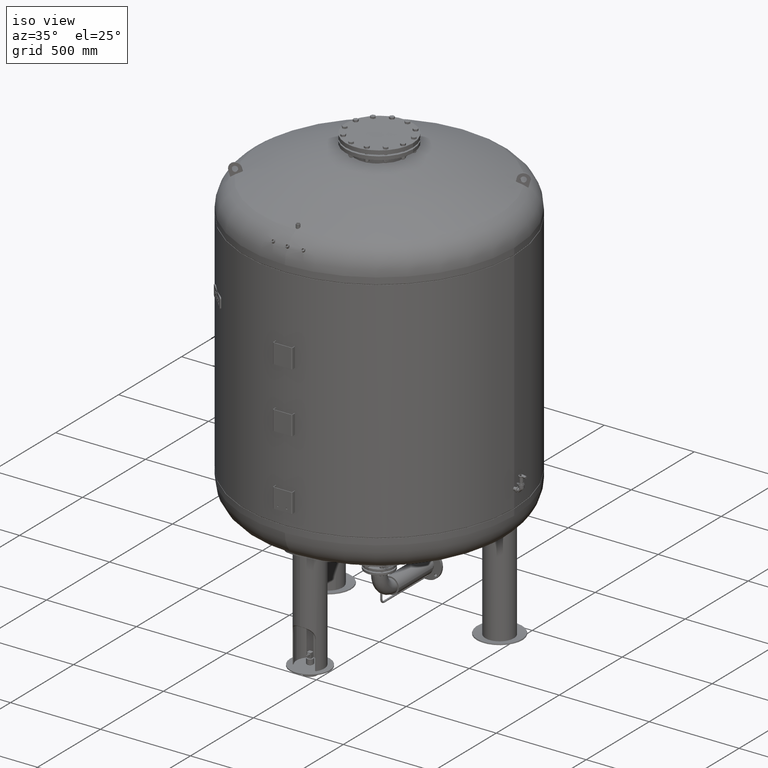
[diagram: clean part render]
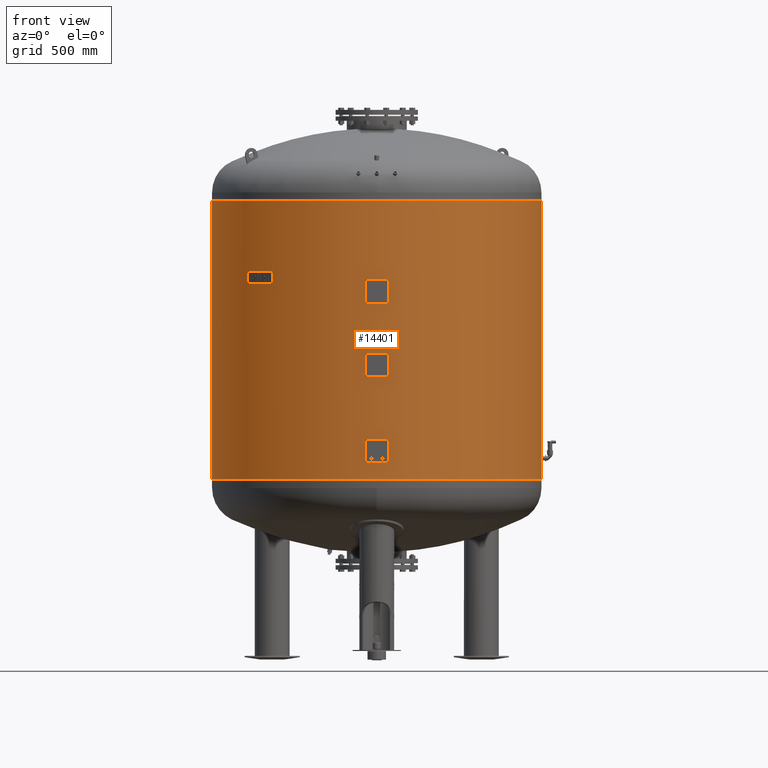
[diagram: tour spotlight — one face highlighted and labeled with its STEP entity id]
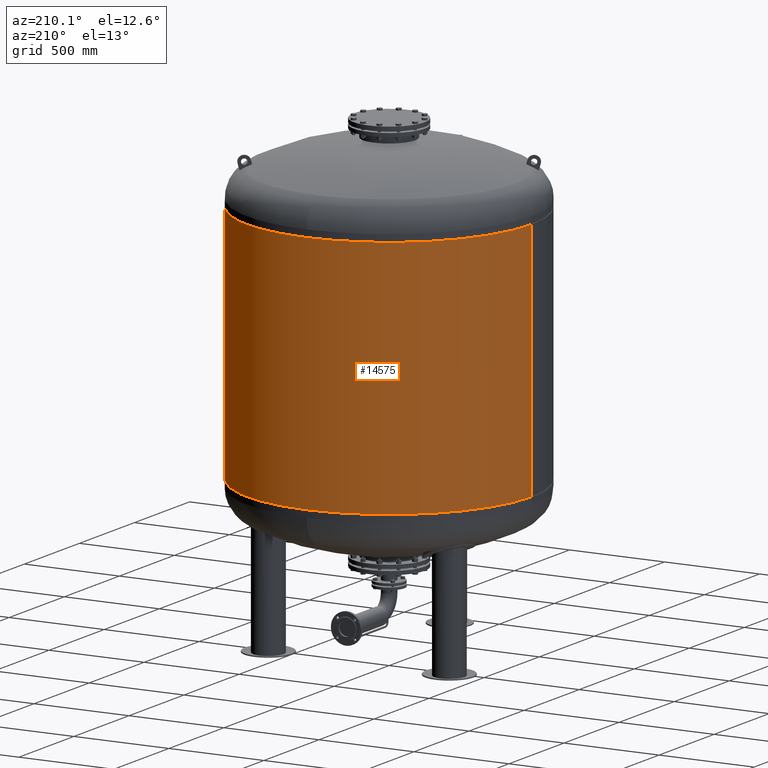
[diagram: tour spotlight — one face highlighted and labeled with its STEP entity id]
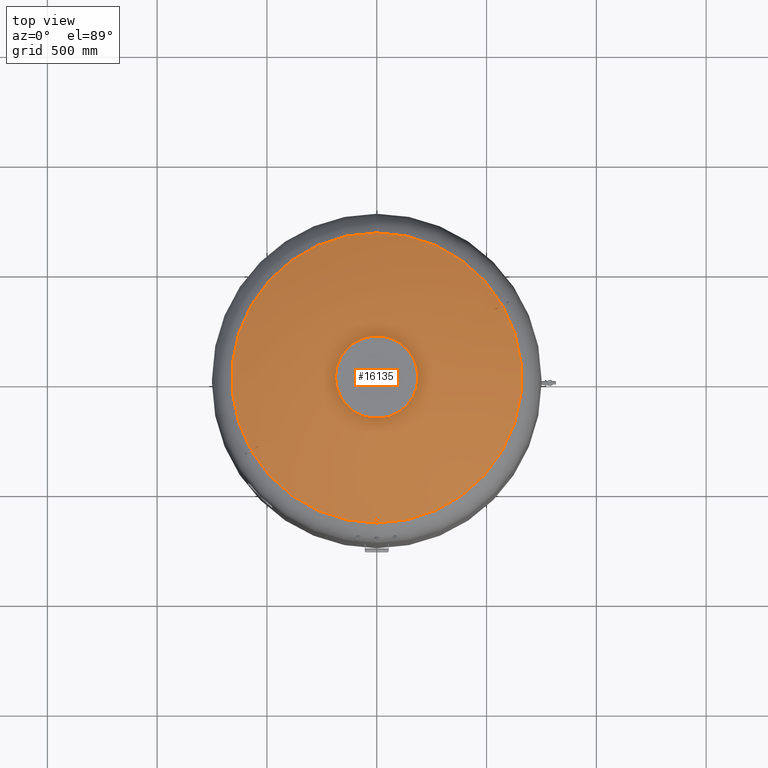
[diagram: tour spotlight — one face highlighted and labeled with its STEP entity id]
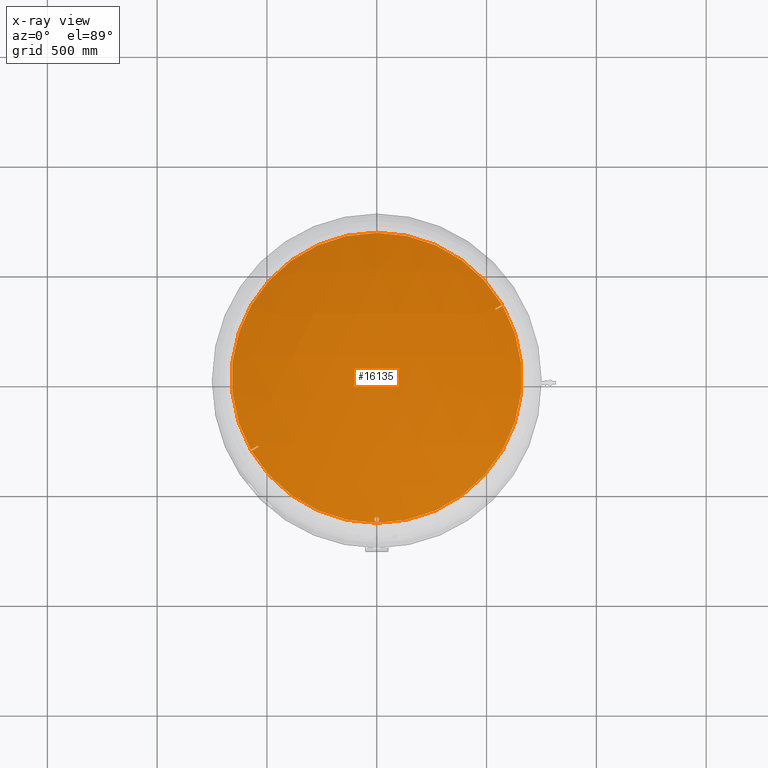
[diagram: x-ray of the same camera — body ghosted, this tour face saturated]
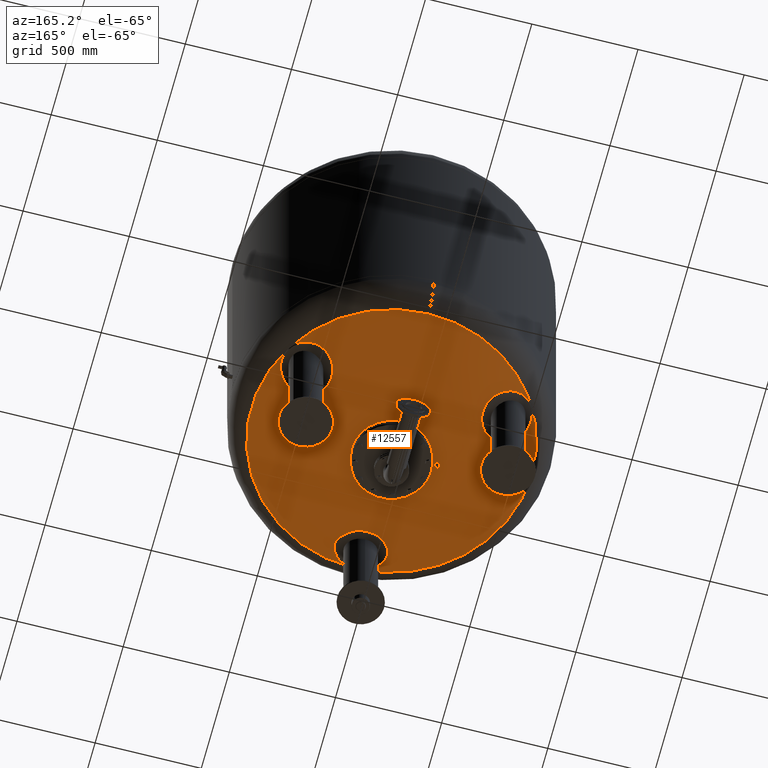
[diagram: tour spotlight — one face highlighted and labeled with its STEP entity id]
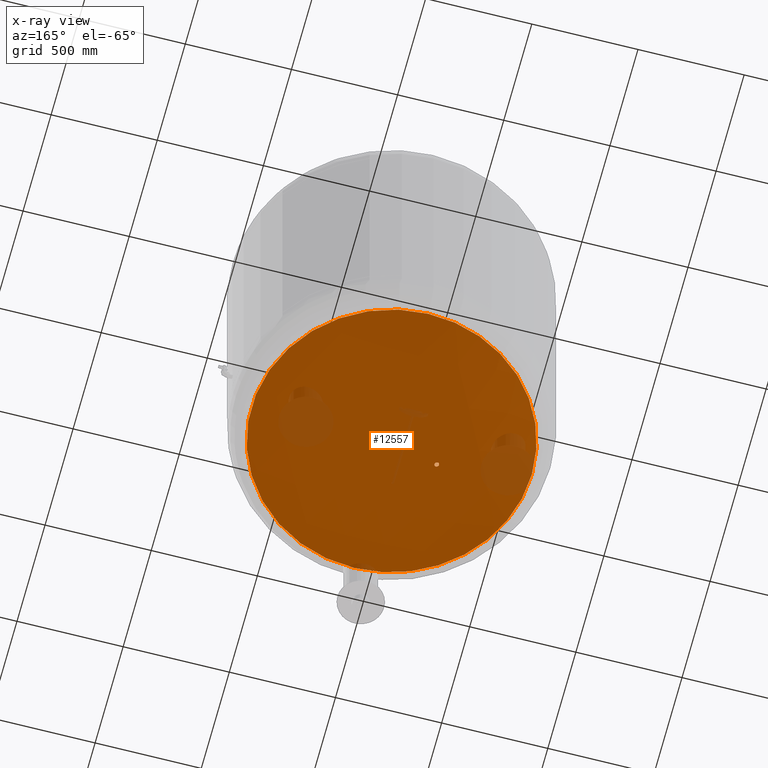
[diagram: x-ray of the same camera — body ghosted, this tour face saturated]
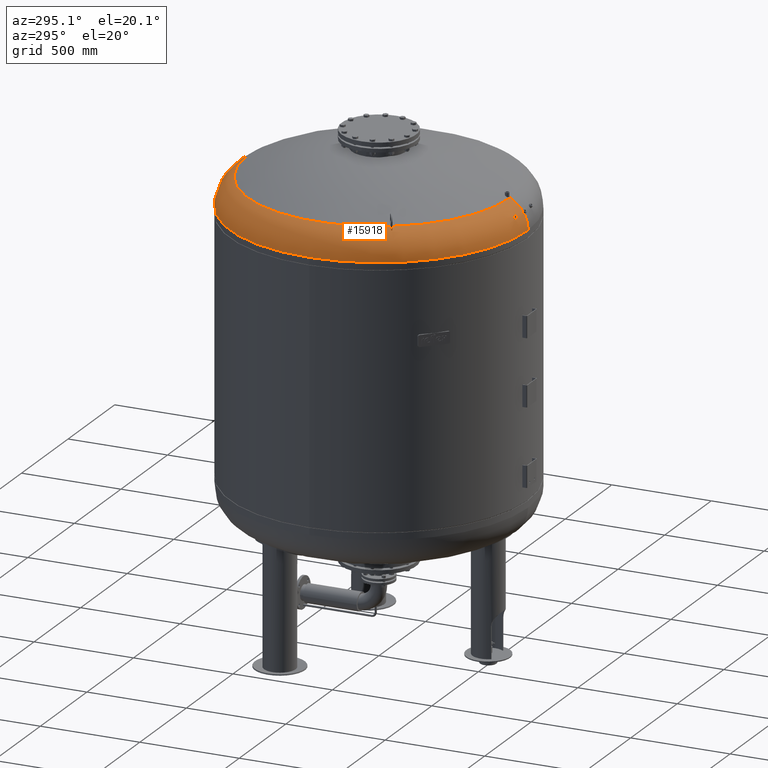
[diagram: tour spotlight — one face highlighted and labeled with its STEP entity id]
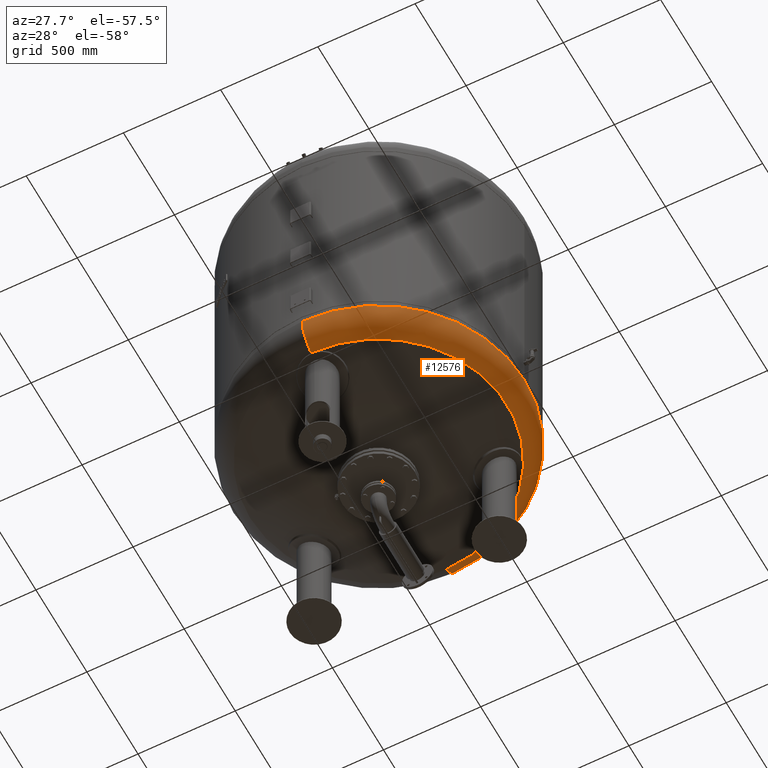
[diagram: tour spotlight — one face highlighted and labeled with its STEP entity id]
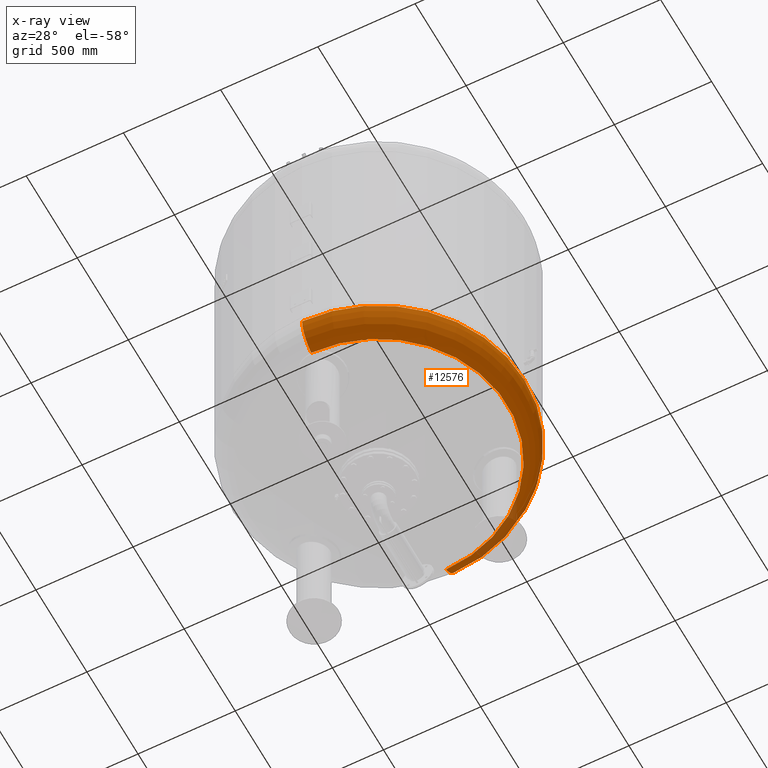
[diagram: x-ray of the same camera — body ghosted, this tour face saturated]
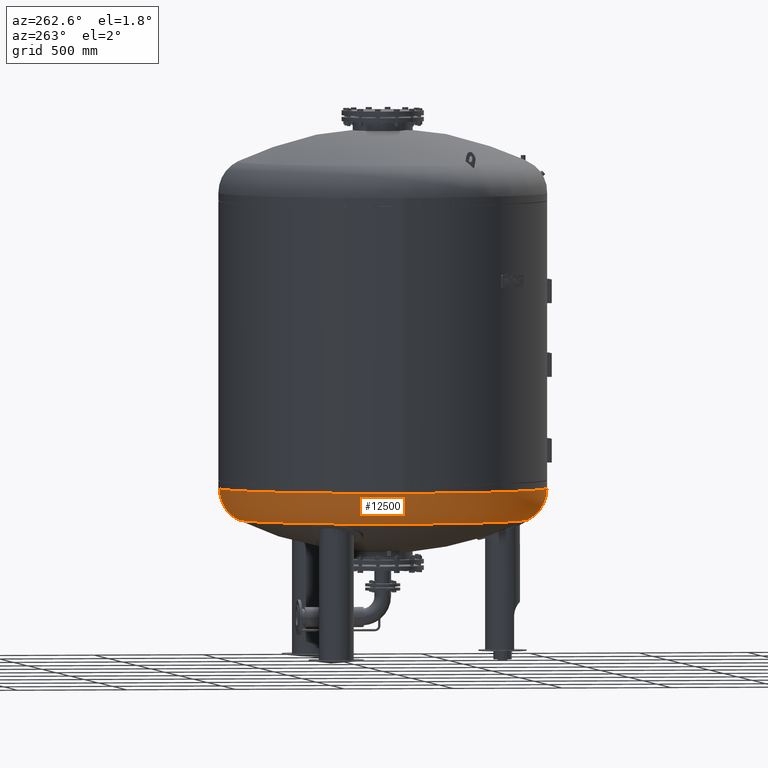
[diagram: tour spotlight — one face highlighted and labeled with its STEP entity id]
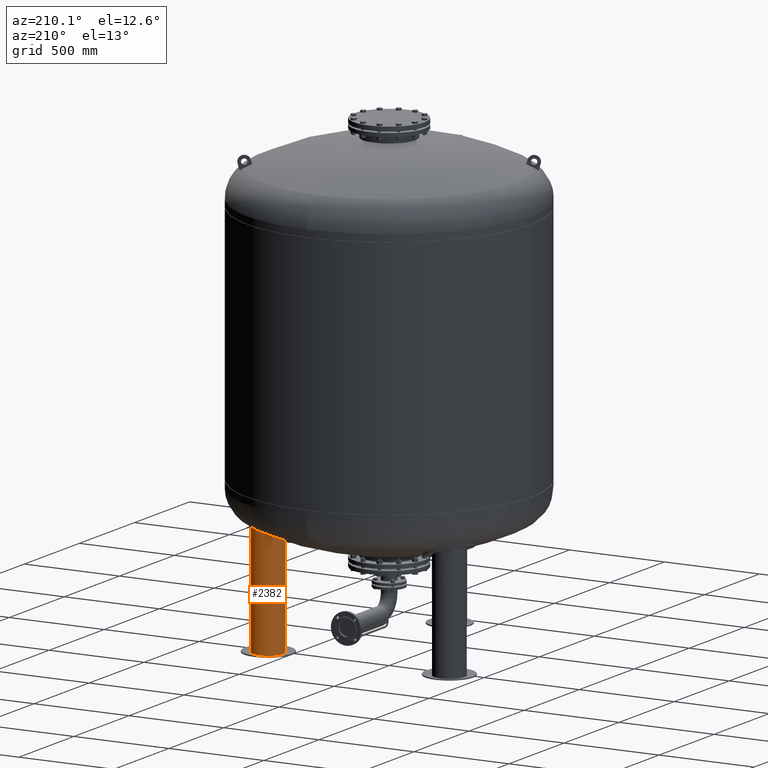
[diagram: tour spotlight — one face highlighted and labeled with its STEP entity id]
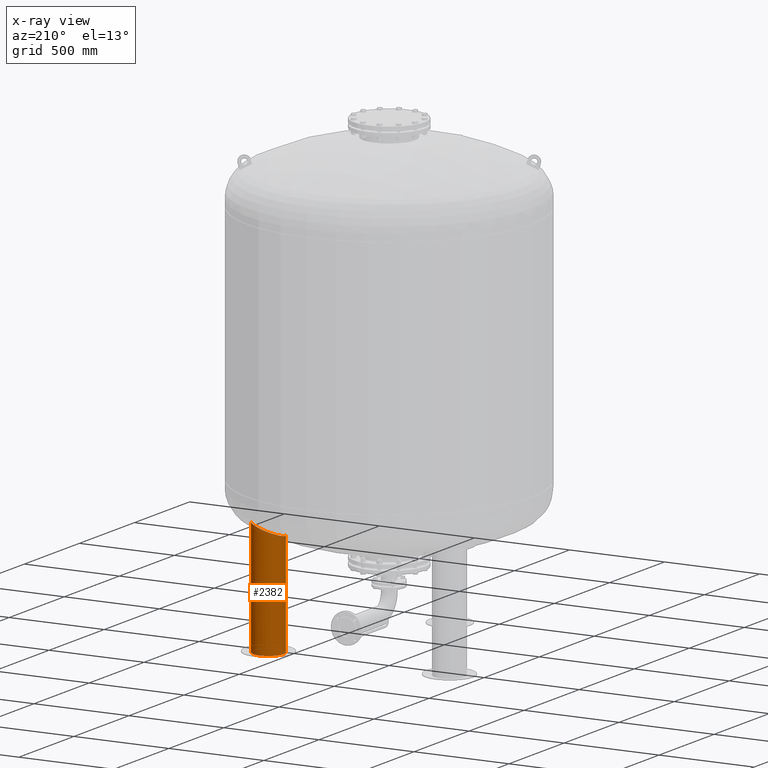
[diagram: x-ray of the same camera — body ghosted, this tour face saturated]
A machine part: a face-by-face anatomy tour. The part has 1142 B-rep faces; the first image is the clean iso view, then the 8 largest visible faces are spotlighted one at a time (largest first), each with its STEP entity span.

Face 1 — front view, entity #14401. In plain terms, the highlighted cylindrical surface (partial cylindrical patch) has radius 750 mm, axis along (0, 0, 1).
Definition (entity closure, byte-faithful):
#14360=CARTESIAN_POINT('',(9.041626E-015,0.0,1781.0));
#14361=DIRECTION('',(2.670074E-017,0.0,1.0));
#14362=DIRECTION('',(1.0,0.0,0.0));
#14363=AXIS2_PLACEMENT_3D('',#14360,#14361,#14362);
#14364=CYLINDRICAL_SURFACE('',#14363,750.000000000000450);
#14365=CARTESIAN_POINT('',(750.000000000000570,0.0,2092.0));
#14366=VERTEX_POINT('',#14365);
#14367=CARTESIAN_POINT('',(749.999999999999890,0.0,821.999999999999770));
#14368=VERTEX_POINT('',#14367);
#14369=CARTESIAN_POINT('',(750.000000000000570,0.0,2092.0));
#14370=DIRECTION('',(0.0,0.0,-1.0));
#14371=VECTOR('',#14370,1270.000000000000200);
#14372=LINE('',#14369,#14371);
#14373=EDGE_CURVE('',#14366,#14368,#14372,.T.);
#14374=ORIENTED_EDGE('',*,*,#14373,.F.);
#14375=CARTESIAN_POINT('',(-750.000000000000450,-9.184548E-014,2092.0));
#14376=VERTEX_POINT('',#14375);
#14377=CARTESIAN_POINT('',(1.598721E-014,0.0,2092.0));
#14378=DIRECTION('',(0.0,0.0,1.0));
#14379=DIRECTION('',(1.0,0.0,0.0));
#14380=AXIS2_PLACEMENT_3D('',#14377,#14378,#14379);
#14381=CIRCLE('',#14380,750.000000000000570);
#14382=EDGE_CURVE('',#14376,#14366,#14381,.T.);
#14383=ORIENTED_EDGE('',*,*,#14382,.F.);
#14384=CARTESIAN_POINT('',(-749.999999999999890,-9.184548E-014,821.999999999999770));
#14385=VERTEX_POINT('',#14384);
#14386=CARTESIAN_POINT('',(-750.000000000000450,-9.184548E-014,2092.0));
#14387=DIRECTION('',(0.0,0.0,-1.0));
#14388=VECTOR('',#14387,1270.000000000000200);
#14389=LINE('',#14386,#14388);
#14390=EDGE_CURVE('',#14376,#14385,#14389,.T.);
#14391=ORIENTED_EDGE('',*,*,#14390,.T.);
#14392=CARTESIAN_POINT('',(-1.660786E-014,0.0,821.999999999999770));
#14393=DIRECTION('',(0.0,0.0,1.0));
#14394=DIRECTION('',(1.0,0.0,0.0));
#14395=AXIS2_PLACEMENT_3D('',#14392,#14393,#14394);
#14396=CIRCLE('',#14395,749.999999999999890);
#14397=EDGE_CURVE('',#14385,#14368,#14396,.T.);
#14398=ORIENTED_EDGE('',*,*,#14397,.T.);
#14399=EDGE_LOOP('',(#14374,#14383,#14391,#14398));
#14400=FACE_OUTER_BOUND('',#14399,.T.);
#14401=ADVANCED_FACE('',(#14400),#14364,.T.);

Face 2 — auxiliary view, entity #14575. In plain terms, the highlighted cylindrical surface (partial cylindrical patch) has radius 750 mm, axis along (0, 0, 1).
Definition (entity closure, byte-faithful):
#14365=CARTESIAN_POINT('',(750.000000000000570,0.0,2092.0));
#14366=VERTEX_POINT('',#14365);
#14367=CARTESIAN_POINT('',(749.999999999999890,0.0,821.999999999999770));
#14368=VERTEX_POINT('',#14367);
#14369=CARTESIAN_POINT('',(750.000000000000570,0.0,2092.0));
#14370=DIRECTION('',(0.0,0.0,-1.0));
#14371=VECTOR('',#14370,1270.000000000000200);
#14372=LINE('',#14369,#14371);
#14373=EDGE_CURVE('',#14366,#14368,#14372,.T.);
#14375=CARTESIAN_POINT('',(-750.000000000000450,-9.184548E-014,2092.0));
#14376=VERTEX_POINT('',#14375);
#14384=CARTESIAN_POINT('',(-749.999999999999890,-9.184548E-014,821.999999999999770));
#14385=VERTEX_POINT('',#14384);
#14386=CARTESIAN_POINT('',(-750.000000000000450,-9.184548E-014,2092.0));
#14387=DIRECTION('',(0.0,0.0,-1.0));
#14388=VECTOR('',#14387,1270.000000000000200);
#14389=LINE('',#14386,#14388);
#14390=EDGE_CURVE('',#14376,#14385,#14389,.T.);
#14500=CARTESIAN_POINT('',(-1.660786E-014,0.0,821.999999999999770));
#14501=DIRECTION('',(0.0,0.0,1.0));
#14502=DIRECTION('',(1.0,0.0,0.0));
#14503=AXIS2_PLACEMENT_3D('',#14500,#14501,#14502);
#14504=CIRCLE('',#14503,749.999999999999890);
#14505=EDGE_CURVE('',#14368,#14385,#14504,.T.);
#14515=CARTESIAN_POINT('',(1.598721E-014,0.0,2092.0));
#14516=DIRECTION('',(0.0,0.0,1.0));
#14517=DIRECTION('',(1.0,0.0,0.0));
#14518=AXIS2_PLACEMENT_3D('',#14515,#14516,#14517);
#14519=CIRCLE('',#14518,750.000000000000570);
#14520=EDGE_CURVE('',#14366,#14376,#14519,.T.);
#14564=CARTESIAN_POINT('',(9.041626E-015,0.0,1781.0));
#14565=DIRECTION('',(2.670074E-017,0.0,1.0));
#14566=DIRECTION('',(1.0,0.0,0.0));
#14567=AXIS2_PLACEMENT_3D('',#14564,#14565,#14566);
#14568=CYLINDRICAL_SURFACE('',#14567,750.000000000000450);
#14569=ORIENTED_EDGE('',*,*,#14373,.T.);
#14570=ORIENTED_EDGE('',*,*,#14505,.T.);
#14571=ORIENTED_EDGE('',*,*,#14390,.F.);
#14572=ORIENTED_EDGE('',*,*,#14520,.F.);
#14573=EDGE_LOOP('',(#14569,#14570,#14571,#14572));
#14574=FACE_OUTER_BOUND('',#14573,.T.);
#14575=ADVANCED_FACE('',(#14574),#14568,.T.);

Face 3 — top view, entity #16135. An x-ray twin of the same camera follows (body ghosted, this face saturated) — the face is partly hidden behind the body. In plain terms, the highlighted spherical surface has radius 1509 mm.
Definition (entity closure, byte-faithful):
#15353=CARTESIAN_POINT('',(-3.908790E-014,-655.650000000000200,2275.118860696149600));
#15354=VERTEX_POINT('',#15353);
#15370=CARTESIAN_POINT('',(-3.643333E-014,-634.350000000000250,2285.189934778955400));
#15371=VERTEX_POINT('',#15370);
#15378=CARTESIAN_POINT('',(-3.643333E-014,-634.350000000000250,2285.189934778955400));
#15379=CARTESIAN_POINT('',(-0.665356121600575,-634.350000000000250,2285.189934778955400));
#15380=CARTESIAN_POINT('',(-1.350949437001933,-634.413404190588380,2285.160067323583900));
#15381=CARTESIAN_POINT('',(-2.709163715388102,-634.677136677483300,2285.035819489551600));
#15382=CARTESIAN_POINT('',(-3.381800145527381,-634.877399673759780,2284.941469592940800));
#15383=CARTESIAN_POINT('',(-4.666205770247565,-635.401555709393960,2284.694482302683800));
#15384=CARTESIAN_POINT('',(-5.279175018932286,-635.725897994843310,2284.541632396409100));
#15385=CARTESIAN_POINT('',(-6.408446699131011,-636.467094997367890,2284.192258225785700));
#15386=CARTESIAN_POINT('',(-6.924750618118385,-636.883947430330180,2283.995733923613400));
#15387=CARTESIAN_POINT('',(-7.890225855511284,-637.812066143510150,2283.558066601965000));
#15388=CARTESIAN_POINT('',(-8.361484811050577,-638.364076526992330,2283.297699280517000));
#15389=CARTESIAN_POINT('',(-9.184909130526258,-639.560574217313960,2282.733154802825500));
#15390=CARTESIAN_POINT('',(-9.537165322407889,-640.205009979753980,2282.429000886638700));
#15391=CARTESIAN_POINT('',(-10.099596713855821,-641.543470358319950,2281.797056877939700));
#15392=CARTESIAN_POINT('',(-10.310158197774166,-642.238371078161440,2281.468852435417800));
#15393=CARTESIAN_POINT('',(-10.585389715432889,-643.630518005042970,2280.811092215924000));
#15394=CARTESIAN_POINT('',(-10.650000000000041,-644.327773783445990,2280.481531696811500));
#15395=CARTESIAN_POINT('',(-10.650000000000041,-645.672582847176270,2279.845682896962900));
#15396=CARTESIAN_POINT('',(-10.585321999158978,-646.370108996278650,2279.515766474685300));
#15397=CARTESIAN_POINT('',(-10.309904511360994,-647.762627273321750,2278.856887882093800));
#15398=CARTESIAN_POINT('',(-10.099226215268921,-648.457629366783070,2278.527921196685800));
#15399=CARTESIAN_POINT('',(-9.536575262430000,-649.796175836176870,2277.894126243168100));
#15400=CARTESIAN_POINT('',(-9.184218306884119,-650.440594312455000,2277.588884786357100));
#15401=CARTESIAN_POINT('',(-8.360621428439867,-651.637013011092450,2277.022009760502000));
#15402=CARTESIAN_POINT('',(-7.889290439644364,-652.188962456306400,2276.760401335867800));
#15403=CARTESIAN_POINT('',(-6.923874650766163,-653.116778685511690,2276.320541682071500));
#15404=CARTESIAN_POINT('',(-6.407722563082293,-653.533432843510810,2276.122965029964700));
#15405=CARTESIAN_POINT('',(-5.278739801402308,-654.274335051526010,2275.771567636845200));
#15406=CARTESIAN_POINT('',(-4.665906970622991,-654.598580857008300,2275.617749092760700));
#15407=CARTESIAN_POINT('',(-3.381714256279930,-655.122620744017920,2275.369122863290600));
#15408=CARTESIAN_POINT('',(-2.709152380359616,-655.322864024945490,2275.274102903182200));
#15409=CARTESIAN_POINT('',(-1.351005238531963,-655.586586472611200,2275.148956099280000));
#15410=CARTESIAN_POINT('',(-0.665404330812124,-655.650000000000200,2275.118860696149600));
#15411=CARTESIAN_POINT('',(-3.908790E-014,-655.650000000000200,2275.118860696149600));
#15412=B_SPLINE_CURVE_WITH_KNOTS('',3,(#15378,#15379,#15380,#15381,#15382,#15383,#15384,#15385,#15386,#15387,#15388,#15389,#15390,#15391,#15392,#15393,#15394,#15395,#15396,#15397,#15398,#15399,#15400,#15401,#15402,#15403,#15404,#15405,#15406,#15407,#15408,#15409,#15410,#15411),.UNSPECIFIED.,.F.,.U.,(4,2,2,2,2,2,2,2,2,2,2,2,2,2,2,2,4),(33.819766214062426,35.815834578864042,37.811902943665665,39.807971308467287,41.804039673268903,44.034778043807279,46.265516414345662,48.496254784884044,50.726993155422420,52.958914981161783,55.190836806901146,57.422758632640509,59.654680458379865,61.650893450816113,63.647106443252355,65.643319435688596,67.639532428124852),.UNSPECIFIED.);
#15413=EDGE_CURVE('',#15371,#15354,#15412,.T.);
#15634=CARTESIAN_POINT('',(1.087271E-013,660.606666666666800,2272.716562866229200));
#15635=VERTEX_POINT('',#15634);
#15643=CARTESIAN_POINT('',(570.596255916202270,332.898003566943030,2272.716562866229200));
#15644=VERTEX_POINT('',#15643);
#15645=CARTESIAN_POINT('',(7.530601E-015,-2.797401E-014,2272.716562866229200));
#15646=DIRECTION('',(0.0,0.0,-1.0));
#15647=DIRECTION('',(1.0,0.0,0.0));
#15648=AXIS2_PLACEMENT_3D('',#15645,#15646,#15647);
#15649=CIRCLE('',#15648,660.606666666666800);
#15650=EDGE_CURVE('',#15635,#15644,#15649,.T.);
#15679=CARTESIAN_POINT('',(573.596255916202270,327.701851144236400,2272.716562866229200));
#15680=VERTEX_POINT('',#15679);
#15694=CARTESIAN_POINT('',(2.782883E-014,-660.606666666666800,2272.716562866229200));
#15695=VERTEX_POINT('',#15694);
#15696=CARTESIAN_POINT('',(7.530601E-015,-2.797401E-014,2272.716562866229200));
#15697=DIRECTION('',(0.0,0.0,-1.0));
#15698=DIRECTION('',(1.0,0.0,0.0));
#15699=AXIS2_PLACEMENT_3D('',#15696,#15697,#15698);
#15700=CIRCLE('',#15699,660.606666666666800);
#15701=EDGE_CURVE('',#15680,#15695,#15700,.T.);
#15816=CARTESIAN_POINT('',(-570.596255916196580,-332.898003566952920,2272.716562866229700));
#15817=VERTEX_POINT('',#15816);
#15818=CARTESIAN_POINT('',(7.530601E-015,-2.797401E-014,2272.716562866229200));
#15819=DIRECTION('',(0.0,0.0,-1.0));
#15820=DIRECTION('',(1.0,0.0,0.0));
#15821=AXIS2_PLACEMENT_3D('',#15818,#15819,#15820);
#15822=CIRCLE('',#15821,660.606666666666800);
#15823=EDGE_CURVE('',#15695,#15817,#15822,.T.);
#15852=CARTESIAN_POINT('',(-573.596255916196580,-327.701851144246290,2272.716562866229700));
#15853=VERTEX_POINT('',#15852);
#15867=CARTESIAN_POINT('',(7.530601E-015,-2.797401E-014,2272.716562866229200));
#15868=DIRECTION('',(0.0,0.0,-1.0));
#15869=DIRECTION('',(1.0,0.0,0.0));
#15870=AXIS2_PLACEMENT_3D('',#15867,#15868,#15869);
#15871=CIRCLE('',#15870,660.606666666666800);
#15872=EDGE_CURVE('',#15853,#15635,#15871,.T.);
#16034=CARTESIAN_POINT('',(1.607048E-013,-2.771988E-013,916.0));
#16035=DIRECTION('',(0.0,-1.0,0.0));
#16036=DIRECTION('',(-1.0,0.0,0.0));
#16037=AXIS2_PLACEMENT_3D('',#16034,#16035,#16036);
#16038=SPHERICAL_SURFACE('',#16037,1509.0);
#16039=CARTESIAN_POINT('',(-539.004547741172360,-314.658522347942950,2289.879584180558100));
#16040=VERTEX_POINT('',#16039);
#16041=CARTESIAN_POINT('',(1.500000000005994,-2.598076211363742,916.0));
#16042=DIRECTION('',(0.499999999999994,-0.866025403784442,0.0));
#16043=DIRECTION('',(0.0,0.0,1.0));
#16044=AXIS2_PLACEMENT_3D('',#16041,#16042,#16043);
#16045=CIRCLE('',#16044,1508.997017889697400);
#16046=EDGE_CURVE('',#16040,#15817,#16045,.T.);
#16047=ORIENTED_EDGE('',*,*,#16046,.T.);
#16048=ORIENTED_EDGE('',*,*,#15823,.F.);
#16049=ORIENTED_EDGE('',*,*,#15701,.F.);
#16050=CARTESIAN_POINT('',(542.004547741178380,309.462369925225970,2289.879584180558100));
#16051=VERTEX_POINT('',#16050);
#16052=CARTESIAN_POINT('',(1.500000000006090,-2.598076211363818,916.0));
#16053=DIRECTION('',(0.500000000000006,-0.866025403784435,0.0));
#16054=DIRECTION('',(0.0,0.0,1.0));
#16055=AXIS2_PLACEMENT_3D('',#16052,#16053,#16054);
#16056=CIRCLE('',#16055,1508.997017889697400);
#16057=EDGE_CURVE('',#15680,#16051,#16056,.T.);
#16058=ORIENTED_EDGE('',*,*,#16057,.T.);
#16059=CARTESIAN_POINT('',(539.004547741178380,314.658522347932720,2289.879584180558100));
#16060=VERTEX_POINT('',#16059);
#16061=CARTESIAN_POINT('',(195.850324208315390,113.074237402547780,853.348481320245360));
#16062=DIRECTION('',(-0.834590199910595,-0.481850876581413,0.266981143436977));
#16063=DIRECTION('',(0.0,0.484652475916126,0.874706795211040));
#16064=AXIS2_PLACEMENT_3D('',#16061,#16062,#16063);
#16065=CIRCLE('',#16064,1490.641692208577100);
#16066=EDGE_CURVE('',#16051,#16060,#16065,.T.);
#16067=ORIENTED_EDGE('',*,*,#16066,.T.);
#16068=CARTESIAN_POINT('',(-1.499999999993948,2.598076211342792,916.0));
#16069=DIRECTION('',(-0.500000000000006,0.866025403784435,0.0));
#16070=DIRECTION('',(0.0,0.0,-1.0));
#16071=AXIS2_PLACEMENT_3D('',#16068,#16069,#16070);
#16072=CIRCLE('',#16071,1508.997017889697400);
#16073=EDGE_CURVE('',#16060,#15644,#16072,.T.);
#16074=ORIENTED_EDGE('',*,*,#16073,.T.);
#16075=ORIENTED_EDGE('',*,*,#15650,.F.);
#16076=ORIENTED_EDGE('',*,*,#15872,.F.);
#16077=CARTESIAN_POINT('',(-542.004547741172470,-309.462369925236320,2289.879584180558100));
#16078=VERTEX_POINT('',#16077);
#16079=CARTESIAN_POINT('',(-1.499999999993967,2.598076211342912,916.0));
#16080=DIRECTION('',(-0.499999999999994,0.866025403784442,0.0));
#16081=DIRECTION('',(0.0,0.0,-1.0));
#16082=AXIS2_PLACEMENT_3D('',#16079,#16080,#16081);
#16083=CIRCLE('',#16082,1508.997017889697400);
#16084=EDGE_CURVE('',#15853,#16078,#16083,.T.);
#16085=ORIENTED_EDGE('',*,*,#16084,.T.);
#16086=CARTESIAN_POINT('',(-195.850324208316520,-113.074237402545550,853.348481320245580));
#16087=DIRECTION('',(0.834590199910602,0.481850876581402,0.266981143436977));
#16088=DIRECTION('',(0.0,0.484652475916135,-0.874706795211036));
#16089=AXIS2_PLACEMENT_3D('',#16086,#16087,#16088);
#16090=CIRCLE('',#16089,1490.641692208577100);
#16091=EDGE_CURVE('',#16078,#16040,#16090,.T.);
#16092=ORIENTED_EDGE('',*,*,#16091,.T.);
#16093=EDGE_LOOP('',(#16047,#16048,#16049,#16058,#16067,#16074,#16075,#16076,#16085,#16092));
#16094=FACE_OUTER_BOUND('',#16093,.T.);
#16095=CARTESIAN_POINT('',(-3.908790E-014,-655.650000000000200,2275.118860696149600));
#16096=CARTESIAN_POINT('',(0.665404330812043,-655.650000000000200,2275.118860696149600));
#16097=CARTESIAN_POINT('',(1.351005238531879,-655.586586472611200,2275.148956099280000));
#16098=CARTESIAN_POINT('',(2.709152380359531,-655.322864024945490,2275.274102903182200));
#16099=CARTESIAN_POINT('',(3.381714256279847,-655.122620744017920,2275.369122863290600));
#16100=CARTESIAN_POINT('',(4.665906970622912,-654.598580857008300,2275.617749092760700));
#16101=CARTESIAN_POINT('',(5.278739801402231,-654.274335051526010,2275.771567636845200));
#16102=CARTESIAN_POINT('',(6.407722563082215,-653.533432843510810,2276.122965029964700));
#16103=CARTESIAN_POINT('',(6.923874650766086,-653.116778685511690,2276.320541682071500));
#16104=CARTESIAN_POINT('',(7.889290439644289,-652.188962456306400,2276.760401335867800));
#16105=CARTESIAN_POINT('',(8.360621428439895,-651.637013011092340,2277.022009760502000));
#16106=CARTESIAN_POINT('',(9.184218306884104,-650.440594312454890,2277.588884786357100));
#16107=CARTESIAN_POINT('',(9.536575262430048,-649.796175836176760,2277.894126243168100));
#16108=CARTESIAN_POINT('',(10.099226215268947,-648.457629366782840,2278.527921196685800));
#16109=CARTESIAN_POINT('',(10.309904511360925,-647.762627273321640,2278.856887882094300));
#16110=CARTESIAN_POINT('',(10.585321999158889,-646.370108996278760,2279.515766474685700));
#16111=CARTESIAN_POINT('',(10.649999999999967,-645.672582847176270,2279.845682896962900));
#16112=CARTESIAN_POINT('',(10.649999999999967,-644.327773783445990,2280.481531696811500));
#16113=CARTESIAN_POINT('',(10.585389715432814,-643.630518005042970,2280.811092215924000));
#16114=CARTESIAN_POINT('',(10.310158197774092,-642.238371078161440,2281.468852435417800));
#16115=CARTESIAN_POINT('',(10.099596713855746,-641.543470358319950,2281.797056877939700));
#16116=CARTESIAN_POINT('',(9.537165322407816,-640.205009979753980,2282.429000886638700));
#16117=CARTESIAN_POINT('',(9.184909130526183,-639.560574217313960,2282.733154802825500));
#16118=CARTESIAN_POINT('',(8.361484811050502,-638.364076526992330,2283.297699280517000));
#16119=CARTESIAN_POINT('',(7.890225855511214,-637.812066143510150,2283.558066601965000));
#16120=CARTESIAN_POINT('',(6.924750618118313,-636.883947430330180,2283.995733923613400));
#16121=CARTESIAN_POINT('',(6.408446699130936,-636.467094997367890,2284.192258225785700));
#16122=CARTESIAN_POINT('',(5.279175018932212,-635.725897994843310,2284.541632396409100));
#16123=CARTESIAN_POINT('',(4.666205770247492,-635.401555709393960,2284.694482302683800));
#16124=CARTESIAN_POINT('',(3.381800145527312,-634.877399673759780,2284.941469592940800));
#16125=CARTESIAN_POINT('',(2.709163715388034,-634.677136677483300,2285.035819489551600));
#16126=CARTESIAN_POINT('',(1.350949437001865,-634.413404190588380,2285.160067323583900));
#16127=CARTESIAN_POINT('',(0.665356121600503,-634.350000000000250,2285.189934778955400));
#16128=CARTESIAN_POINT('',(-3.643333E-014,-634.350000000000250,2285.189934778955400));
#16129=B_SPLINE_CURVE_WITH_KNOTS('',3,(#16095,#16096,#16097,#16098,#16099,#16100,#16101,#16102,#16103,#16104,#16105,#16106,#16107,#16108,#16109,#16110,#16111,#16112,#16113,#16114,#16115,#16116,#16117,#16118,#16119,#16120,#16121,#16122,#16123,#16124,#16125,#16126,#16127,#16128),.UNSPECIFIED.,.F.,.U.,(4,2,2,2,2,2,2,2,2,2,2,2,2,2,2,2,4),(0.0,1.996212992436247,3.992425984872494,5.988638977308741,7.984851969744987,10.216773795484348,12.448695621223710,14.680617446963071,16.912539272702432,19.143277643240811,21.374016013779190,23.604754384317570,25.835492754855949,27.831561119657568,29.827629484459187,31.823697849260807,33.819766214062426),.UNSPECIFIED.);
#16130=EDGE_CURVE('',#15354,#15371,#16129,.T.);
#16131=ORIENTED_EDGE('',*,*,#16130,.F.);
#16132=ORIENTED_EDGE('',*,*,#15413,.F.);
#16133=EDGE_LOOP('',(#16131,#16132));
#16134=FACE_BOUND('',#16133,.T.);
#16135=ADVANCED_FACE('',(#16094,#16134),#16038,.T.);

Face 4 — auxiliary view, entity #12557. An x-ray twin of the same camera follows (body ghosted, this face saturated) — the face is partly hidden behind the body. In plain terms, the highlighted spherical surface has radius 1509 mm.
Definition (entity closure, byte-faithful):
#11943=CARTESIAN_POINT('',(-212.755018225922980,10.650000000000025,504.111490197582730));
#11944=VERTEX_POINT('',#11943);
#11960=CARTESIAN_POINT('',(-212.755018225922920,-10.649999999999977,504.111490197582730));
#11961=VERTEX_POINT('',#11960);
#11968=CARTESIAN_POINT('',(-212.755018225922920,-10.649999999999977,504.111490197582730));
#11969=CARTESIAN_POINT('',(-213.419011675303470,-10.649999999999977,504.206054107471520));
#11970=CARTESIAN_POINT('',(-214.105750002547010,-10.586002935223853,504.303859995531640));
#11971=CARTESIAN_POINT('',(-215.471998216119350,-10.316322565205640,504.498448015527060));
#11972=CARTESIAN_POINT('',(-216.151519234566820,-10.110696799189359,504.595231725685490));
#11973=CARTESIAN_POINT('',(-217.454993578020150,-9.566700205802199,504.780889696093200));
#11974=CARTESIAN_POINT('',(-218.079979560205970,-9.227897507145640,504.869911021596410));
#11975=CARTESIAN_POINT('',(-219.235911791307670,-8.444653831775536,505.034562693183770));
#11976=CARTESIAN_POINT('',(-219.766824716640490,-8.000162672841055,505.110188265454330));
#11977=CARTESIAN_POINT('',(-220.705161963617570,-7.054045017024349,505.243851513287550));
#11978=CARTESIAN_POINT('',(-221.144925246937730,-6.520392992667618,505.306495787971980));
#11979=CARTESIAN_POINT('',(-221.920233921404840,-5.358190494648129,505.416940142047510));
#11980=CARTESIAN_POINT('',(-222.255826242709650,-4.729671961427570,505.464746877156980));
#11981=CARTESIAN_POINT('',(-222.794857826027850,-3.418493427039524,505.541535204704360));
#11982=CARTESIAN_POINT('',(-222.998727676562230,-2.734783845876105,505.570578117718240));
#11983=CARTESIAN_POINT('',(-223.266162948007600,-1.359800715734586,505.608676548802070));
#11984=CARTESIAN_POINT('',(-223.329671080674100,-0.668515798513802,505.617723900810230));
#11985=CARTESIAN_POINT('',(-223.329671080674100,0.668515798513863,505.617723900810230));
#11986=CARTESIAN_POINT('',(-223.266162948007550,1.359800715734639,505.608676548802070));
#11987=CARTESIAN_POINT('',(-222.998727676562170,2.734783845876161,505.570578117718240));
#11988=CARTESIAN_POINT('',(-222.794857826027790,3.418493427039572,505.541535204704360));
#11989=CARTESIAN_POINT('',(-222.255826242709620,4.729671961427616,505.464746877156930));
#11990=CARTESIAN_POINT('',(-221.920233921404840,5.358190494648194,505.416940142047510));
#11991=CARTESIAN_POINT('',(-221.144925246937730,6.520392992667670,505.306495787971980));
#11992=CARTESIAN_POINT('',(-220.705161963617600,7.054045017024412,505.243851513287320));
#11993=CARTESIAN_POINT('',(-219.766824716640540,8.000162672841116,505.110188265454100));
#11994=CARTESIAN_POINT('',(-219.235911791307670,8.444653831775581,505.034562693183770));
#11995=CARTESIAN_POINT('',(-218.079979560205970,9.227897507145675,504.869911021596410));
#11996=CARTESIAN_POINT('',(-217.454993578020120,9.566700205802249,504.780889696093200));
#11997=CARTESIAN_POINT('',(-216.151519234566790,10.110696799189398,504.595231725685490));
#11998=CARTESIAN_POINT('',(-215.471998216119350,10.316322565205695,504.498448015527060));
#11999=CARTESIAN_POINT('',(-214.105750002547010,10.586002935223901,504.303859995531640));
#12000=CARTESIAN_POINT('',(-213.419011675303580,10.650000000000027,504.206054107471290));
#12001=CARTESIAN_POINT('',(-212.755018225923010,10.650000000000025,504.111490197582500));
#12002=B_SPLINE_CURVE_WITH_KNOTS('',3,(#11968,#11969,#11970,#11971,#11972,#11973,#11974,#11975,#11976,#11977,#11978,#11979,#11980,#11981,#11982,#11983,#11984,#11985,#11986,#11987,#11988,#11989,#11990,#11991,#11992,#11993,#11994,#11995,#11996,#11997,#11998,#11999,#12000,#12001),.UNSPECIFIED.,.F.,.U.,(4,2,2,2,2,2,2,2,2,2,2,2,2,2,2,2,4),(32.141065367889837,34.153145561337297,36.165225754784764,38.177305948232231,40.189386141679691,42.194933537221189,44.200480932762694,46.206028328304200,48.211575723845698,50.217123119387196,52.222670514928701,54.228217910470207,56.233765306011705,58.245845499459165,60.257925692906625,62.270005886354085,64.282086079801545),.UNSPECIFIED.);
#12003=EDGE_CURVE('',#11961,#11944,#12002,.T.);
#12456=CARTESIAN_POINT('',(-4.647817E-014,-660.606666666666800,641.283437133770350));
#12457=VERTEX_POINT('',#12456);
#12473=CARTESIAN_POINT('',(-1.273765E-013,660.606666666666800,641.283437133770800));
#12474=VERTEX_POINT('',#12473);
#12482=CARTESIAN_POINT('',(-660.606666666666800,-2.797401E-014,641.283437133770460));
#12483=VERTEX_POINT('',#12482);
#12484=CARTESIAN_POINT('',(-2.617994E-014,-2.797401E-014,641.283437133770580));
#12485=DIRECTION('',(0.0,0.0,1.0));
#12486=DIRECTION('',(-1.0,0.0,0.0));
#12487=AXIS2_PLACEMENT_3D('',#12484,#12485,#12486);
#12488=CIRCLE('',#12487,660.606666666666800);
#12489=EDGE_CURVE('',#12474,#12483,#12488,.T.);
#12491=CARTESIAN_POINT('',(-2.617994E-014,-2.797401E-014,641.283437133770580));
#12492=DIRECTION('',(0.0,0.0,1.0));
#12493=DIRECTION('',(-1.0,0.0,0.0));
#12494=AXIS2_PLACEMENT_3D('',#12491,#12492,#12493);
#12495=CIRCLE('',#12494,660.606666666666800);
#12496=EDGE_CURVE('',#12483,#12457,#12495,.T.);
#12501=CARTESIAN_POINT('',(-3.455040E-013,-2.771988E-013,1998.0));
#12502=DIRECTION('',(0.0,-1.0,0.0));
#12503=DIRECTION('',(1.0,0.0,0.0));
#12504=AXIS2_PLACEMENT_3D('',#12501,#12502,#12503);
#12505=SPHERICAL_SURFACE('',#12504,1509.0);
#12506=ORIENTED_EDGE('',*,*,#12496,.F.);
#12507=ORIENTED_EDGE('',*,*,#12489,.F.);
#12508=CARTESIAN_POINT('',(-2.617994E-014,-2.797401E-014,641.283437133770580));
#12509=DIRECTION('',(0.0,0.0,1.0));
#12510=DIRECTION('',(-1.0,0.0,0.0));
#12511=AXIS2_PLACEMENT_3D('',#12508,#12509,#12510);
#12512=CIRCLE('',#12511,660.606666666666800);
#12513=EDGE_CURVE('',#12457,#12474,#12512,.T.);
#12514=ORIENTED_EDGE('',*,*,#12513,.F.);
#12515=EDGE_LOOP('',(#12506,#12507,#12514));
#12516=FACE_OUTER_BOUND('',#12515,.T.);
#12517=CARTESIAN_POINT('',(-212.755018225922980,10.650000000000025,504.111490197582730));
#12518=CARTESIAN_POINT('',(-212.091534121174110,10.650000000000023,504.016998826993470));
#12519=CARTESIAN_POINT('',(-211.405305255165390,10.586100987067523,503.919270935515160));
#12520=CARTESIAN_POINT('',(-210.040011582764720,10.316816305665068,503.724841128104740));
#12521=CARTESIAN_POINT('',(-209.360935693561150,10.111487975756443,503.628137626765810));
#12522=CARTESIAN_POINT('',(-208.058232058467690,9.568260163338852,503.442631711125220));
#12523=CARTESIAN_POINT('',(-207.433573599439140,9.229929999631521,503.353682503425660));
#12524=CARTESIAN_POINT('',(-206.278140030699460,8.447763210951747,503.189156544444470));
#12525=CARTESIAN_POINT('',(-205.747398108502670,8.003876573502071,503.113584491733260));
#12526=CARTESIAN_POINT('',(-204.808508501947020,7.058307537946812,502.979898882975760));
#12527=CARTESIAN_POINT('',(-204.368140544053860,6.524478576580964,502.917197598968190));
#12528=CARTESIAN_POINT('',(-203.591752659917630,5.361764591002946,502.806654156464330));
#12529=CARTESIAN_POINT('',(-203.255685649168270,4.732911647791822,502.758805264275910));
#12530=CARTESIAN_POINT('',(-202.715880669299140,3.420948201203286,502.681949057669500));
#12531=CARTESIAN_POINT('',(-202.511710936321490,2.736786134199858,502.652880250254900));
#12532=CARTESIAN_POINT('',(-202.243876352468700,1.360833829767384,502.614747224724620));
#12533=CARTESIAN_POINT('',(-202.180269001838750,0.669032173576298,502.605691188325640));
#12534=CARTESIAN_POINT('',(-202.180269001838750,-0.668515964924981,502.605691188325640));
#12535=CARTESIAN_POINT('',(-202.243778337332200,-1.359800893557784,502.614733269950140));
#12536=CARTESIAN_POINT('',(-202.511218332656630,-2.734783704462489,502.652810115508600));
#12537=CARTESIAN_POINT('',(-202.715091702380590,-3.418492955016180,502.681836727623250));
#12538=CARTESIAN_POINT('',(-203.254131820043630,-4.729670538390643,502.758584032350600));
#12539=CARTESIAN_POINT('',(-203.589729164645410,-5.358188457669904,502.806366051721510));
#12540=CARTESIAN_POINT('',(-204.365048173639280,-6.520389631039324,502.916757297980500));
#12541=CARTESIAN_POINT('',(-204.804816757785550,-7.054040946307282,502.979373235026740));
#12542=CARTESIAN_POINT('',(-205.743164675856750,-8.000158347746877,503.112981698135000));
#12543=CARTESIAN_POINT('',(-206.274083646646060,-8.444649867444356,503.188578951519840));
#12544=CARTESIAN_POINT('',(-207.430027356476640,-9.227894362836144,503.353177533520580));
#12545=CARTESIAN_POINT('',(-208.055018765748740,-9.566697518423954,503.442174143376630));
#12546=CARTESIAN_POINT('',(-209.358502614722480,-10.110695119496913,503.627791147257770));
#12547=CARTESIAN_POINT('',(-210.038027708120440,-10.316321407131081,503.724558611059420));
#12548=CARTESIAN_POINT('',(-211.404282399096330,-10.586002623145955,503.919125267714490));
#12549=CARTESIAN_POINT('',(-212.091023129192620,-10.649999999999977,504.016926053083470));
#12550=CARTESIAN_POINT('',(-212.755018225922920,-10.649999999999977,504.111490197582730));
#12551=B_SPLINE_CURVE_WITH_KNOTS('',3,(#12517,#12518,#12519,#12520,#12521,#12522,#12523,#12524,#12525,#12526,#12527,#12528,#12529,#12530,#12531,#12532,#12533,#12534,#12535,#12536,#12537,#12538,#12539,#12540,#12541,#12542,#12543,#12544,#12545,#12546,#12547,#12548,#12549,#12550),.UNSPECIFIED.,.F.,.U.,(4,2,2,2,2,2,2,2,2,2,2,2,2,2,2,2,4),(0.0,2.010536741104808,4.021073482209616,6.031610223314424,8.042146964419231,10.049243485148079,12.056340005876926,14.063436526605773,16.070533047334621,18.076080942109613,20.081628836884605,22.087176731659596,24.092724626434588,26.104809811798400,28.116894997162213,30.128980182526025,32.141065367889837),.UNSPECIFIED.);
#12552=EDGE_CURVE('',#11944,#11961,#12551,.T.);
#12553=ORIENTED_EDGE('',*,*,#12552,.F.);
#12554=ORIENTED_EDGE('',*,*,#12003,.F.);
#12555=EDGE_LOOP('',(#12553,#12554));
#12556=FACE_BOUND('',#12555,.T.);
#12557=ADVANCED_FACE('',(#12516,#12556),#12505,.T.);

Face 5 — auxiliary view, entity #15918. In plain terms, the highlighted toroidal blend (fillet) surface has major radius 591 mm and minor (blend) radius 159 mm.
Definition (entity closure, byte-faithful):
#14677=CARTESIAN_POINT('',(3.122792E-014,-731.140193061976330,2204.873758403027800));
#14678=VERTEX_POINT('',#14677);
#14694=CARTESIAN_POINT('',(-4.552190E-014,-721.312989634743420,2220.864059968686900));
#14695=VERTEX_POINT('',#14694);
#14702=CARTESIAN_POINT('',(-4.552190E-014,-721.312989634743300,2220.864059968686900));
#14703=CARTESIAN_POINT('',(-1.216627604619004,-721.312989634743420,2220.864059968686900));
#14704=CARTESIAN_POINT('',(-2.420846172799853,-721.449792472538770,2220.664710779082700));
#14705=CARTESIAN_POINT('',(-4.669384557919823,-721.977290652646960,2219.886955241083800));
#14706=CARTESIAN_POINT('',(-5.690062510061028,-722.363095120429990,2219.315347377213100));
#14707=CARTESIAN_POINT('',(-7.331918421734367,-723.280671466352030,2217.931131850914400));
#14708=CARTESIAN_POINT('',(-7.966068383740063,-723.788864787751780,2217.155417043349200));
#14709=CARTESIAN_POINT('',(-8.800722690594947,-724.793982120989430,2215.591286214576900));
#14710=CARTESIAN_POINT('',(-9.052440190634794,-725.272144360063980,2214.836766724827200));
#14711=CARTESIAN_POINT('',(-9.282472319477938,-726.210604081929090,2213.331390400264800));
#14712=CARTESIAN_POINT('',(-9.275772325770873,-726.665919567262220,2212.590032797222200));
#14713=CARTESIAN_POINT('',(-9.014765821945264,-727.601232955180990,2211.044237439510700));
#14714=CARTESIAN_POINT('',(-8.734979948776022,-728.073714672111460,2210.249654755757500));
#14715=CARTESIAN_POINT('',(-7.797158529409781,-729.069002032573850,2208.551274656261700));
#14716=CARTESIAN_POINT('',(-7.064676625474536,-729.562341813228270,2207.690656862444000));
#14717=CARTESIAN_POINT('',(-5.308888466451626,-730.351858938985520,2206.296144274788700));
#14718=CARTESIAN_POINT('',(-4.317417441655823,-730.650579985298580,2205.759337322384000));
#14719=CARTESIAN_POINT('',(-2.202663239875328,-731.042463369145030,2205.052034186725500));
#14720=CARTESIAN_POINT('',(-1.106437025700342,-731.140193061976330,2204.873758403027800));
#14721=CARTESIAN_POINT('',(3.122792E-014,-731.140193061976330,2204.873758403027800));
#14722=B_SPLINE_CURVE_WITH_KNOTS('',3,(#14702,#14703,#14704,#14705,#14706,#14707,#14708,#14709,#14710,#14711,#14712,#14713,#14714,#14715,#14716,#14717,#14718,#14719,#14720,#14721),.UNSPECIFIED.,.F.,.U.,(4,2,2,2,2,2,2,2,2,4),(0.0,3.649882813856876,7.310681580549922,10.654306231007109,13.422310757991522,16.018235978620893,18.896213813138655,22.557069482082380,26.026488518076906,29.349581211693941),.UNSPECIFIED.);
#14723=EDGE_CURVE('',#14695,#14678,#14722,.T.);
#15130=CARTESIAN_POINT('',(-80.324619526775763,-725.631664467896030,2206.848132170746300));
#15131=VERTEX_POINT('',#15130);
#15147=CARTESIAN_POINT('',(-85.635383922484635,-715.574285877587390,2221.762554782342700));
#15148=VERTEX_POINT('',#15147);
#15155=CARTESIAN_POINT('',(-85.635383922484635,-715.574285877587390,2221.762554782342700));
#15156=CARTESIAN_POINT('',(-85.751697910643600,-715.584823434917330,2221.728324926215000));
#15157=CARTESIAN_POINT('',(-85.867428666019890,-715.596743104515550,2221.692191445612000));
#15158=CARTESIAN_POINT('',(-87.128741680695470,-715.742508257127840,2221.275361470484300));
#15159=CARTESIAN_POINT('',(-88.186492726411885,-716.009234017955580,2220.716351051623000));
#15160=CARTESIAN_POINT('',(-89.935825282721410,-716.742142681377460,2219.348126236258400));
#15161=CARTESIAN_POINT('',(-90.633029879036769,-717.185163090627040,2218.572891774600100));
#15162=CARTESIAN_POINT('',(-91.640278455442783,-718.166470653615190,2216.915683597732400));
#15163=CARTESIAN_POINT('',(-91.965403998588442,-718.688806832518250,2216.056962941348500));
#15164=CARTESIAN_POINT('',(-92.270340702007147,-719.780511330210290,2214.295874845220200));
#15165=CARTESIAN_POINT('',(-92.249460843829382,-720.342133314043170,2213.405841099234700));
#15166=CARTESIAN_POINT('',(-91.849844951536213,-721.505887238310380,2211.595753099305100));
#15167=CARTESIAN_POINT('',(-91.440479844910286,-722.098407696789420,2210.693974202179600));
#15168=CARTESIAN_POINT('',(-90.204198635822820,-723.254592823031430,2208.991936934483400));
#15169=CARTESIAN_POINT('',(-89.350470294178919,-723.799898905881150,2208.225239875865600));
#15170=CARTESIAN_POINT('',(-87.376283698285079,-724.691997475429500,2207.074367839977200));
#15171=CARTESIAN_POINT('',(-86.288074489051240,-725.039297621830540,2206.684054515063500));
#15172=CARTESIAN_POINT('',(-83.980959208075419,-725.521981075197910,2206.302132235383400));
#15173=CARTESIAN_POINT('',(-82.786939748589930,-725.653156060043900,2206.313123008004400));
#15174=CARTESIAN_POINT('',(-81.177027978420895,-725.671260423417610,2206.606861467430900));
#15175=CARTESIAN_POINT('',(-80.745883486513506,-725.659627127640080,2206.714378745873100));
#15176=CARTESIAN_POINT('',(-80.324619526775763,-725.631664467896030,2206.848132170746300));
#15177=B_SPLINE_CURVE_WITH_KNOTS('',3,(#15155,#15156,#15157,#15158,#15159,#15160,#15161,#15162,#15163,#15164,#15165,#15166,#15167,#15168,#15169,#15170,#15171,#15172,#15173,#15174,#15175,#15176),.UNSPECIFIED.,.F.,.U.,(4,2,2,2,2,2,2,2,2,2,4),(3.278658884370270,3.644454490810128,7.288016303632789,10.660256003332409,13.807027853929776,16.941024569613159,20.370271395446370,24.139492384347633,27.728377329422056,31.303274489145135,32.638927495877418),.UNSPECIFIED.);
#15178=EDGE_CURVE('',#15148,#15131,#15177,.T.);
#15480=CARTESIAN_POINT('',(-750.0,3.761120E-014,2129.762332584101800));
#15481=VERTEX_POINT('',#15480);
#15488=CARTESIAN_POINT('',(1.267436E-013,750.0,2129.762332584101800));
#15489=VERTEX_POINT('',#15488);
#15490=CARTESIAN_POINT('',(1.459986E-014,-5.423428E-014,2129.762332584101800));
#15491=DIRECTION('',(0.0,0.0,-1.0));
#15492=DIRECTION('',(1.0,0.0,0.0));
#15493=AXIS2_PLACEMENT_3D('',#15490,#15491,#15492);
#15494=CIRCLE('',#15493,750.0);
#15495=EDGE_CURVE('',#15481,#15489,#15494,.T.);
#15617=CARTESIAN_POINT('',(3.489809E-014,-750.0,2129.762332584101800));
#15618=VERTEX_POINT('',#15617);
#15619=CARTESIAN_POINT('',(3.489809E-014,-591.0,2129.762332584101800));
#15620=DIRECTION('',(-1.0,0.0,0.0));
#15621=DIRECTION('',(0.0,-1.0,0.0));
#15622=AXIS2_PLACEMENT_3D('',#15619,#15620,#15621);
#15623=CIRCLE('',#15622,159.0);
#15624=EDGE_CURVE('',#15618,#14678,#15623,.T.);
#15634=CARTESIAN_POINT('',(1.087271E-013,660.606666666666800,2272.716562866229200));
#15635=VERTEX_POINT('',#15634);
#15636=CARTESIAN_POINT('',(1.072723E-013,591.0,2129.762332584101800));
#15637=DIRECTION('',(1.0,0.0,0.0));
#15638=DIRECTION('',(0.0,1.0,0.0));
#15639=AXIS2_PLACEMENT_3D('',#15636,#15637,#15638);
#15640=CIRCLE('',#15639,159.0);
#15641=EDGE_CURVE('',#15489,#15635,#15640,.T.);
#15694=CARTESIAN_POINT('',(2.782883E-014,-660.606666666666800,2272.716562866229200));
#15695=VERTEX_POINT('',#15694);
#15703=CARTESIAN_POINT('',(3.489809E-014,-591.0,2129.762332584101800));
#15704=DIRECTION('',(-1.0,0.0,0.0));
#15705=DIRECTION('',(0.0,-1.0,0.0));
#15706=AXIS2_PLACEMENT_3D('',#15703,#15704,#15705);
#15707=CIRCLE('',#15706,159.0);
#15708=EDGE_CURVE('',#14695,#15695,#15707,.T.);
#15808=CARTESIAN_POINT('',(3.489809E-014,-5.423428E-014,2129.762332584101800));
#15809=DIRECTION('',(4.945121E-017,-1.836970E-016,-1.0));
#15810=DIRECTION('',(0.0,-1.0,0.0));
#15811=AXIS2_PLACEMENT_3D('',#15808,#15809,#15810);
#15812=TOROIDAL_SURFACE('',#15811,591.0,159.0);
#15813=ORIENTED_EDGE('',*,*,#15624,.T.);
#15814=ORIENTED_EDGE('',*,*,#14723,.F.);
#15815=ORIENTED_EDGE('',*,*,#15708,.T.);
#15816=CARTESIAN_POINT('',(-570.596255916196580,-332.898003566952920,2272.716562866229700));
#15817=VERTEX_POINT('',#15816);
#15818=CARTESIAN_POINT('',(7.530601E-015,-2.797401E-014,2272.716562866229200));
#15819=DIRECTION('',(0.0,0.0,-1.0));
#15820=DIRECTION('',(1.0,0.0,0.0));
#15821=AXIS2_PLACEMENT_3D('',#15818,#15819,#15820);
#15822=CIRCLE('',#15821,660.606666666666800);
#15823=EDGE_CURVE('',#15695,#15817,#15822,.T.);
#15824=ORIENTED_EDGE('',*,*,#15823,.T.);
#15825=CARTESIAN_POINT('',(-588.588482349331340,-343.285820341443810,2260.575471650438900));
#15826=VERTEX_POINT('',#15825);
#15827=CARTESIAN_POINT('',(-570.596255916196580,-332.898003566952920,2272.716562866229700));
#15828=CARTESIAN_POINT('',(-572.053991207973350,-333.739627430067460,2271.896971483751700));
#15829=CARTESIAN_POINT('',(-573.514766784388030,-334.583006602336130,2271.038819520509200));
#15830=CARTESIAN_POINT('',(-576.976356895228950,-336.581556584654270,2268.913031156073000));
#15831=CARTESIAN_POINT('',(-578.974623379368950,-337.735256277185040,2267.612231014925300));
#15832=CARTESIAN_POINT('',(-582.931609407494880,-340.019823225703130,2264.881663004374300));
#15833=CARTESIAN_POINT('',(-584.890327860480620,-341.150689851801190,2263.451893026950500));
#15834=CARTESIAN_POINT('',(-587.410163811145820,-342.605517816231330,2261.507741414689900));
#15835=CARTESIAN_POINT('',(-588.001034993596930,-342.946657452475790,2261.044139472540300));
#15836=CARTESIAN_POINT('',(-588.588482349331340,-343.285820341443810,2260.575471650438900));
#15837=B_SPLINE_CURVE_WITH_KNOTS('',3,(#15827,#15828,#15829,#15830,#15831,#15832,#15833,#15834,#15835,#15836),.UNSPECIFIED.,.F.,.U.,(4,2,2,2,4),(774.656357685334110,780.010496801651020,787.369065281617960,794.727633761584910,796.996981542536560),.UNSPECIFIED.);
#15838=EDGE_CURVE('',#15817,#15826,#15837,.T.);
#15839=ORIENTED_EDGE('',*,*,#15838,.T.);
#15840=CARTESIAN_POINT('',(-591.588482349331340,-338.089667918737230,2260.575471650438900));
#15841=VERTEX_POINT('',#15840);
#15842=CARTESIAN_POINT('',(-588.588482349331340,-343.285820341443810,2260.575471650438900));
#15843=CARTESIAN_POINT('',(-589.090111222557650,-342.418391231104920,2260.578030124753200));
#15844=CARTESIAN_POINT('',(-589.590425441359340,-341.552525995020690,2260.579301453786200));
#15845=CARTESIAN_POINT('',(-590.089401200238290,-340.688274628897030,2260.579301453786200));
#15846=CARTESIAN_POINT('',(-590.588376959113930,-339.824023262779290,2260.579301453786200));
#15847=CARTESIAN_POINT('',(-591.088081140412330,-338.957805821386390,2260.578030124753200));
#15848=CARTESIAN_POINT('',(-591.588482349331340,-338.089667918737230,2260.575471650438900));
#15849=B_SPLINE_CURVE_WITH_KNOTS('',3,(#15842,#15843,#15844,#15845,#15846,#15847,#15848),.UNSPECIFIED.,.F.,.U.,(4,3,4),(-2.993854553274037,0.0,2.993854553253479),.UNSPECIFIED.);
#15850=EDGE_CURVE('',#15826,#15841,#15849,.T.);
#15851=ORIENTED_EDGE('',*,*,#15850,.T.);
#15852=CARTESIAN_POINT('',(-573.596255916196580,-327.701851144246290,2272.716562866229700));
#15853=VERTEX_POINT('',#15852);
#15854=CARTESIAN_POINT('',(-591.588482349331340,-338.089667918737230,2260.575471650438900));
#15855=CARTESIAN_POINT('',(-591.001091399295430,-337.750537595614450,2261.044094471851200));
#15856=CARTESIAN_POINT('',(-590.410277309616280,-337.409430921897070,2261.507652363015000));
#15857=CARTESIAN_POINT('',(-587.890496100690370,-335.954634562624850,2263.451768031998700));
#15858=CARTESIAN_POINT('',(-585.931774475118230,-334.823766104833230,2264.881544856047600));
#15859=CARTESIAN_POINT('',(-581.974781685757190,-332.539195252714250,2267.612126014599200));
#15860=CARTESIAN_POINT('',(-579.976511612969600,-331.385493488276780,2268.912932457119000));
#15861=CARTESIAN_POINT('',(-576.514867502691460,-329.386912329369070,2271.038760350182700));
#15862=CARTESIAN_POINT('',(-575.054041405248540,-328.543503988771140,2271.896943261032400));
#15863=CARTESIAN_POINT('',(-573.596255916196580,-327.701851144246290,2272.716562866229700));
#15864=B_SPLINE_CURVE_WITH_KNOTS('',3,(#15854,#15855,#15856,#15857,#15858,#15859,#15860,#15861,#15862,#15863),.UNSPECIFIED.,.F.,.U.,(4,2,2,2,4),(144.901635701804910,147.170765481127490,154.529352849647950,161.887940218168410,167.242267557251490),.UNSPECIFIED.);
#15865=EDGE_CURVE('',#15841,#15853,#15864,.T.);
#15866=ORIENTED_EDGE('',*,*,#15865,.T.);
#15867=CARTESIAN_POINT('',(7.530601E-015,-2.797401E-014,2272.716562866229200));
#15868=DIRECTION('',(0.0,0.0,-1.0));
#15869=DIRECTION('',(1.0,0.0,0.0));
#15870=AXIS2_PLACEMENT_3D('',#15867,#15868,#15869);
#15871=CIRCLE('',#15870,660.606666666666800);
#15872=EDGE_CURVE('',#15853,#15635,#15871,.T.);
#15873=ORIENTED_EDGE('',*,*,#15872,.T.);
#15874=ORIENTED_EDGE('',*,*,#15641,.F.);
#15875=ORIENTED_EDGE('',*,*,#15495,.F.);
#15876=CARTESIAN_POINT('',(1.459986E-014,-5.423428E-014,2129.762332584101800));
#15877=DIRECTION('',(0.0,0.0,-1.0));
#15878=DIRECTION('',(1.0,0.0,0.0));
#15879=AXIS2_PLACEMENT_3D('',#15876,#15877,#15878);
#15880=CIRCLE('',#15879,750.0);
#15881=EDGE_CURVE('',#15618,#15481,#15880,.T.);
#15882=ORIENTED_EDGE('',*,*,#15881,.F.);
#15883=EDGE_LOOP('',(#15813,#15814,#15815,#15824,#15839,#15851,#15866,#15873,#15874,#15875,#15882));
#15884=FACE_OUTER_BOUND('',#15883,.T.);
#15885=CARTESIAN_POINT('',(-82.418225282518975,-715.625413797499390,2222.218126071017700));
#15886=VERTEX_POINT('',#15885);
#15887=CARTESIAN_POINT('',(-82.418225282518975,-715.625413797499390,2222.218126071017200));
#15888=CARTESIAN_POINT('',(-83.503486241272739,-715.496644630705300,2222.223380252973600));
#15889=CARTESIAN_POINT('',(-84.592851196721554,-715.479836804523070,2222.069360058097600));
#15890=CARTESIAN_POINT('',(-85.635383922484635,-715.574285877587390,2221.762554782342700));
#15891=B_SPLINE_CURVE_WITH_KNOTS('',3,(#15887,#15888,#15889,#15890),.UNSPECIFIED.,.F.,.U.,(4,4),(0.0,3.278658884370270),.UNSPECIFIED.);
#15892=EDGE_CURVE('',#15886,#15148,#15891,.T.);
#15893=ORIENTED_EDGE('',*,*,#15892,.F.);
#15894=CARTESIAN_POINT('',(-80.324619526775763,-725.631664467896030,2206.848132170746300));
#15895=CARTESIAN_POINT('',(-79.603660323156106,-725.583808636809290,2207.077040342093800));
#15896=CARTESIAN_POINT('',(-78.911646278136388,-725.488141618513050,2207.382813917124200));
#15897=CARTESIAN_POINT('',(-77.222212521449237,-725.115681403711850,2208.362607900433400));
#15898=CARTESIAN_POINT('',(-76.317927421936858,-724.768867318779830,2209.134491556892500));
#15899=CARTESIAN_POINT('',(-74.946132925129859,-723.914519593408500,2210.831182711681300));
#15900=CARTESIAN_POINT('',(-74.457232207516498,-723.430649705558840,2211.722882366415400));
#15901=CARTESIAN_POINT('',(-73.870781197431526,-722.386558955259720,2213.521012463643300));
#15902=CARTESIAN_POINT('',(-73.753352386426073,-721.839956349735420,2214.411335242182800));
#15903=CARTESIAN_POINT('',(-73.860899185828302,-720.692664032343260,2216.182962741003400));
#15904=CARTESIAN_POINT('',(-74.093767176368601,-720.098740571914620,2217.051514111703900));
#15905=CARTESIAN_POINT('',(-74.947090346532292,-718.870290020489390,2218.755478554270200));
#15906=CARTESIAN_POINT('',(-75.602909731200441,-718.250570188939490,2219.559221781374200));
#15907=CARTESIAN_POINT('',(-77.248208478895677,-717.153954201742070,2220.883541165539600));
#15908=CARTESIAN_POINT('',(-78.218328412238677,-716.685643756633110,2221.395527365662000));
#15909=CARTESIAN_POINT('',(-80.278822602245128,-715.990793099707840,2222.049760016226600));
#15910=CARTESIAN_POINT('',(-81.337295636326687,-715.753669042268600,2222.212892858676200));
#15911=CARTESIAN_POINT('',(-82.418225282518989,-715.625413797499500,2222.218126071017200));
#15912=B_SPLINE_CURVE_WITH_KNOTS('',3,(#15894,#15895,#15896,#15897,#15898,#15899,#15900,#15901,#15902,#15903,#15904,#15905,#15906,#15907,#15908,#15909,#15910,#15911),.UNSPECIFIED.,.F.,.U.,(4,2,2,2,2,2,2,2,4),(32.638927495877418,34.924789615782629,38.604003359803322,41.953211636474663,45.082959359834476,48.290804129513170,51.882292037365538,55.428413587393997,58.693987235171122),.UNSPECIFIED.);
#15913=EDGE_CURVE('',#15131,#15886,#15912,.T.);
#15914=ORIENTED_EDGE('',*,*,#15913,.F.);
#15915=ORIENTED_EDGE('',*,*,#15178,.F.);
#15916=EDGE_LOOP('',(#15893,#15914,#15915));
#15917=FACE_BOUND('',#15916,.T.);
#15918=ADVANCED_FACE('',(#15884,#15917),#15812,.T.);

Face 6 — auxiliary view, entity #12576. An x-ray twin of the same camera follows (body ghosted, this face saturated) — the face is partly hidden behind the body. In plain terms, the highlighted toroidal blend (fillet) surface has major radius 591 mm and minor (blend) radius 159 mm.
Definition (entity closure, byte-faithful):
#12422=CARTESIAN_POINT('',(750.0,3.761120E-014,784.237667415898160));
#12423=VERTEX_POINT('',#12422);
#12430=CARTESIAN_POINT('',(-1.628998E-013,750.0,784.237667415898270));
#12431=VERTEX_POINT('',#12430);
#12432=CARTESIAN_POINT('',(-5.075605E-014,-5.423428E-014,784.237667415898160));
#12433=DIRECTION('',(0.0,0.0,1.0));
#12434=DIRECTION('',(-1.0,0.0,0.0));
#12435=AXIS2_PLACEMENT_3D('',#12432,#12433,#12434);
#12436=CIRCLE('',#12435,750.0);
#12437=EDGE_CURVE('',#12423,#12431,#12436,.T.);
#12454=CARTESIAN_POINT('',(-7.105427E-014,-750.0,784.237667415898040));
#12455=VERTEX_POINT('',#12454);
#12456=CARTESIAN_POINT('',(-4.647817E-014,-660.606666666666800,641.283437133770350));
#12457=VERTEX_POINT('',#12456);
#12458=CARTESIAN_POINT('',(-7.105427E-014,-591.0,784.237667415898040));
#12459=DIRECTION('',(1.0,0.0,0.0));
#12460=DIRECTION('',(0.0,-1.0,0.0));
#12461=AXIS2_PLACEMENT_3D('',#12458,#12459,#12460);
#12462=CIRCLE('',#12461,159.0);
#12463=EDGE_CURVE('',#12455,#12457,#12462,.T.);
#12473=CARTESIAN_POINT('',(-1.273765E-013,660.606666666666800,641.283437133770800));
#12474=VERTEX_POINT('',#12473);
#12475=CARTESIAN_POINT('',(-1.434285E-013,591.0,784.237667415898270));
#12476=DIRECTION('',(-1.0,0.0,0.0));
#12477=DIRECTION('',(0.0,1.0,0.0));
#12478=AXIS2_PLACEMENT_3D('',#12475,#12476,#12477);
#12479=CIRCLE('',#12478,159.0);
#12480=EDGE_CURVE('',#12431,#12474,#12479,.T.);
#12508=CARTESIAN_POINT('',(-2.617994E-014,-2.797401E-014,641.283437133770580));
#12509=DIRECTION('',(0.0,0.0,1.0));
#12510=DIRECTION('',(-1.0,0.0,0.0));
#12511=AXIS2_PLACEMENT_3D('',#12508,#12509,#12510);
#12512=CIRCLE('',#12511,660.606666666666800);
#12513=EDGE_CURVE('',#12457,#12474,#12512,.T.);
#12558=CARTESIAN_POINT('',(-7.105427E-014,-5.423428E-014,784.237667415898160));
#12559=DIRECTION('',(-1.719159E-016,-1.836970E-016,1.0));
#12560=DIRECTION('',(0.0,-1.0,0.0));
#12561=AXIS2_PLACEMENT_3D('',#12558,#12559,#12560);
#12562=TOROIDAL_SURFACE('',#12561,591.0,159.0);
#12563=ORIENTED_EDGE('',*,*,#12463,.T.);
#12564=ORIENTED_EDGE('',*,*,#12513,.T.);
#12565=ORIENTED_EDGE('',*,*,#12480,.F.);
#12566=ORIENTED_EDGE('',*,*,#12437,.F.);
#12567=CARTESIAN_POINT('',(-5.075605E-014,-5.423428E-014,784.237667415898160));
#12568=DIRECTION('',(0.0,0.0,1.0));
#12569=DIRECTION('',(-1.0,0.0,0.0));
#12570=AXIS2_PLACEMENT_3D('',#12567,#12568,#12569);
#12571=CIRCLE('',#12570,750.0);
#12572=EDGE_CURVE('',#12455,#12423,#12571,.T.);
#12573=ORIENTED_EDGE('',*,*,#12572,.F.);
#12574=EDGE_LOOP('',(#12563,#12564,#12565,#12566,#12573));
#12575=FACE_OUTER_BOUND('',#12574,.T.);
#12576=ADVANCED_FACE('',(#12575),#12562,.T.);

Face 7 — auxiliary view, entity #12500. In plain terms, the highlighted toroidal blend (fillet) surface has major radius 591 mm and minor (blend) radius 159 mm.
Definition (entity closure, byte-faithful):
#12405=CARTESIAN_POINT('',(-750.0,-5.423428E-014,784.237667415897930));
#12406=VERTEX_POINT('',#12405);
#12430=CARTESIAN_POINT('',(-1.628998E-013,750.0,784.237667415898270));
#12431=VERTEX_POINT('',#12430);
#12439=CARTESIAN_POINT('',(-5.075605E-014,-5.423428E-014,784.237667415898160));
#12440=DIRECTION('',(0.0,0.0,1.0));
#12441=DIRECTION('',(-1.0,0.0,0.0));
#12442=AXIS2_PLACEMENT_3D('',#12439,#12440,#12441);
#12443=CIRCLE('',#12442,750.0);
#12444=EDGE_CURVE('',#12431,#12406,#12443,.T.);
#12449=CARTESIAN_POINT('',(-7.105427E-014,-5.423428E-014,784.237667415898160));
#12450=DIRECTION('',(-1.719159E-016,-1.836970E-016,1.0));
#12451=DIRECTION('',(0.0,-1.0,0.0));
#12452=AXIS2_PLACEMENT_3D('',#12449,#12450,#12451);
#12453=TOROIDAL_SURFACE('',#12452,591.0,159.0);
#12454=CARTESIAN_POINT('',(-7.105427E-014,-750.0,784.237667415898040));
#12455=VERTEX_POINT('',#12454);
#12456=CARTESIAN_POINT('',(-4.647817E-014,-660.606666666666800,641.283437133770350));
#12457=VERTEX_POINT('',#12456);
#12458=CARTESIAN_POINT('',(-7.105427E-014,-591.0,784.237667415898040));
#12459=DIRECTION('',(1.0,0.0,0.0));
#12460=DIRECTION('',(0.0,-1.0,0.0));
#12461=AXIS2_PLACEMENT_3D('',#12458,#12459,#12460);
#12462=CIRCLE('',#12461,159.0);
#12463=EDGE_CURVE('',#12455,#12457,#12462,.T.);
#12464=ORIENTED_EDGE('',*,*,#12463,.F.);
#12465=CARTESIAN_POINT('',(-5.075605E-014,-5.423428E-014,784.237667415898160));
#12466=DIRECTION('',(0.0,0.0,1.0));
#12467=DIRECTION('',(-1.0,0.0,0.0));
#12468=AXIS2_PLACEMENT_3D('',#12465,#12466,#12467);
#12469=CIRCLE('',#12468,750.0);
#12470=EDGE_CURVE('',#12406,#12455,#12469,.T.);
#12471=ORIENTED_EDGE('',*,*,#12470,.F.);
#12472=ORIENTED_EDGE('',*,*,#12444,.F.);
#12473=CARTESIAN_POINT('',(-1.273765E-013,660.606666666666800,641.283437133770800));
#12474=VERTEX_POINT('',#12473);
#12475=CARTESIAN_POINT('',(-1.434285E-013,591.0,784.237667415898270));
#12476=DIRECTION('',(-1.0,0.0,0.0));
#12477=DIRECTION('',(0.0,1.0,0.0));
#12478=AXIS2_PLACEMENT_3D('',#12475,#12476,#12477);
#12479=CIRCLE('',#12478,159.0);
#12480=EDGE_CURVE('',#12431,#12474,#12479,.T.);
#12481=ORIENTED_EDGE('',*,*,#12480,.T.);
#12482=CARTESIAN_POINT('',(-660.606666666666800,-2.797401E-014,641.283437133770460));
#12483=VERTEX_POINT('',#12482);
#12484=CARTESIAN_POINT('',(-2.617994E-014,-2.797401E-014,641.283437133770580));
#12485=DIRECTION('',(0.0,0.0,1.0));
#12486=DIRECTION('',(-1.0,0.0,0.0));
#12487=AXIS2_PLACEMENT_3D('',#12484,#12485,#12486);
#12488=CIRCLE('',#12487,660.606666666666800);
#12489=EDGE_CURVE('',#12474,#12483,#12488,.T.);
#12490=ORIENTED_EDGE('',*,*,#12489,.T.);
#12491=CARTESIAN_POINT('',(-2.617994E-014,-2.797401E-014,641.283437133770580));
#12492=DIRECTION('',(0.0,0.0,1.0));
#12493=DIRECTION('',(-1.0,0.0,0.0));
#12494=AXIS2_PLACEMENT_3D('',#12491,#12492,#12493);
#12495=CIRCLE('',#12494,660.606666666666800);
#12496=EDGE_CURVE('',#12483,#12457,#12495,.T.);
#12497=ORIENTED_EDGE('',*,*,#12496,.T.);
#12498=EDGE_LOOP('',(#12464,#12471,#12472,#12481,#12490,#12497));
#12499=FACE_OUTER_BOUND('',#12498,.T.);
#12500=ADVANCED_FACE('',(#12499),#12453,.T.);

Face 8 — auxiliary view, entity #2382. An x-ray twin of the same camera follows (body ghosted, this face saturated) — the face is partly hidden behind the body. In plain terms, the highlighted cylindrical surface (edge-blend (fillet) strip) has radius 79.5 mm, axis along (-0, 0, -1).
Definition (entity closure, byte-faithful):
#2316=CARTESIAN_POINT('',(476.313972081441250,274.999999999999940,15.815585141290533));
#2317=DIRECTION('',(-9.184851E-017,1.590863E-016,-1.0));
#2318=DIRECTION('',(0.866025403784439,0.500000000000000,0.0));
#2319=AXIS2_PLACEMENT_3D('',#2316,#2317,#2318);
#2320=CYLINDRICAL_SURFACE('',#2319,79.500000000000000);
#2321=CARTESIAN_POINT('',(545.162991682304100,314.749999999999940,11.631170282581067));
#2322=VERTEX_POINT('',#2321);
#2323=CARTESIAN_POINT('',(545.162991682304780,314.750000000000170,619.974328976416250));
#2324=VERTEX_POINT('',#2323);
#2325=CARTESIAN_POINT('',(545.162991682304100,314.749999999999940,11.631170282581067));
#2326=DIRECTION('',(0.0,0.0,1.0));
#2327=VECTOR('',#2326,608.343158693835220);
#2328=LINE('',#2325,#2327);
#2329=EDGE_CURVE('',#2322,#2324,#2328,.T.);
#2330=ORIENTED_EDGE('',*,*,#2329,.F.);
#2331=CARTESIAN_POINT('',(407.464952480578400,235.249999999999940,11.631170282581067));
#2332=VERTEX_POINT('',#2331);
#2333=CARTESIAN_POINT('',(476.313972081441250,274.999999999999940,11.631170282581067));
#2334=DIRECTION('',(0.0,0.0,-1.0));
#2335=DIRECTION('',(0.866025403784439,0.500000000000000,0.0));
#2336=AXIS2_PLACEMENT_3D('',#2333,#2334,#2335);
#2337=CIRCLE('',#2336,79.500000000000000);
#2338=EDGE_CURVE('',#2332,#2322,#2337,.T.);
#2339=ORIENTED_EDGE('',*,*,#2338,.F.);
#2340=CARTESIAN_POINT('',(407.464952480578400,235.249999999999830,557.801446445446690));
#2341=VERTEX_POINT('',#2340);
#2342=CARTESIAN_POINT('',(407.464952480578400,235.249999999999940,11.631170282581067));
#2343=DIRECTION('',(0.0,0.0,1.0));
#2344=VECTOR('',#2343,546.170276162865660);
#2345=LINE('',#2342,#2344);
#2346=EDGE_CURVE('',#2332,#2341,#2345,.T.);
#2347=ORIENTED_EDGE('',*,*,#2346,.T.);
#2348=CARTESIAN_POINT('',(435.923993297311600,343.475540259405990,588.259208461118310));
#2349=VERTEX_POINT('',#2348);
#2350=CARTESIAN_POINT('',(407.464952480578400,235.249999999999830,557.801446445446690));
#2351=CARTESIAN_POINT('',(403.404620725765540,242.282700894921050,557.801446445446690));
#2352=CARTESIAN_POINT('',(400.451610787080200,249.885975801156520,558.277369662588170));
#2353=CARTESIAN_POINT('',(396.597055088747990,267.270620755335590,560.328261777430270));
#2354=CARTESIAN_POINT('',(396.270319464510980,276.954377197880150,562.075596332598020));
#2355=CARTESIAN_POINT('',(399.072489778784760,296.341456745020760,566.734659420112730));
#2356=CARTESIAN_POINT('',(402.373919211337180,305.818108910622580,569.661195647944850));
#2357=CARTESIAN_POINT('',(412.496769615312990,323.583126452498620,576.486089468713540));
#2358=CARTESIAN_POINT('',(419.500370050858520,331.582796994882020,580.391859104990320));
#2359=CARTESIAN_POINT('',(430.379304327032230,339.969799272506860,585.699021239809100));
#2360=CARTESIAN_POINT('',(433.101443881988190,341.810672620973430,586.978453284904280));
#2361=CARTESIAN_POINT('',(435.923993297311600,343.475540259405990,588.259208461118310));
#2362=B_SPLINE_CURVE_WITH_KNOTS('',3,(#2350,#2351,#2352,#2353,#2354,#2355,#2356,#2357,#2358,#2359,#2360,#2361),.UNSPECIFIED.,.F.,.U.,(4,2,2,2,2,4),(25.946274642103887,28.391196783303212,31.323094720106891,34.426409319311013,37.777807879739491,38.832927063684011),.UNSPECIFIED.);
#2363=EDGE_CURVE('',#2341,#2349,#2362,.T.);
#2364=ORIENTED_EDGE('',*,*,#2363,.T.);
#2365=CARTESIAN_POINT('',(435.923993297311600,343.475540259405990,588.259208461118310));
#2366=CARTESIAN_POINT('',(442.620858014037540,347.425654749982700,591.297966296069830));
#2367=CARTESIAN_POINT('',(449.882913637144440,350.384943361649900,594.344322088061060));
#2368=CARTESIAN_POINT('',(468.025368474697360,354.807454012759190,601.394273940897850));
#2369=CARTESIAN_POINT('',(479.095487505130900,355.220505554612940,605.264897102246320));
#2370=CARTESIAN_POINT('',(500.101187832981220,351.546225351953470,611.749699955350710));
#2371=CARTESIAN_POINT('',(509.890893953472470,347.824400099864870,614.383971692484580));
#2372=CARTESIAN_POINT('',(524.123023604612060,338.831776724313730,617.505471067215810));
#2373=CARTESIAN_POINT('',(529.077385518121330,334.809706666959300,618.415766111970470));
#2374=CARTESIAN_POINT('',(538.005689491232830,325.557982821373230,619.656658887407730));
#2375=CARTESIAN_POINT('',(541.918381164990710,320.369830266758530,619.974328976416020));
#2376=CARTESIAN_POINT('',(545.162991682303980,314.749999999999720,619.974328976416020));
#2377=B_SPLINE_CURVE_WITH_KNOTS('',3,(#2365,#2366,#2367,#2368,#2369,#2370,#2371,#2372,#2373,#2374,#2375,#2376),.UNSPECIFIED.,.F.,.U.,(4,2,2,2,2,4),(38.832927063684011,41.336334230459492,44.806614551580793,48.013896662752792,49.941938919734973,51.888705230122902),.UNSPECIFIED.);
#2378=EDGE_CURVE('',#2349,#2324,#2377,.T.);
#2379=ORIENTED_EDGE('',*,*,#2378,.T.);
#2380=EDGE_LOOP('',(#2330,#2339,#2347,#2364,#2379));
#2381=FACE_OUTER_BOUND('',#2380,.T.);
#2382=ADVANCED_FACE('',(#2381),#2320,.T.);